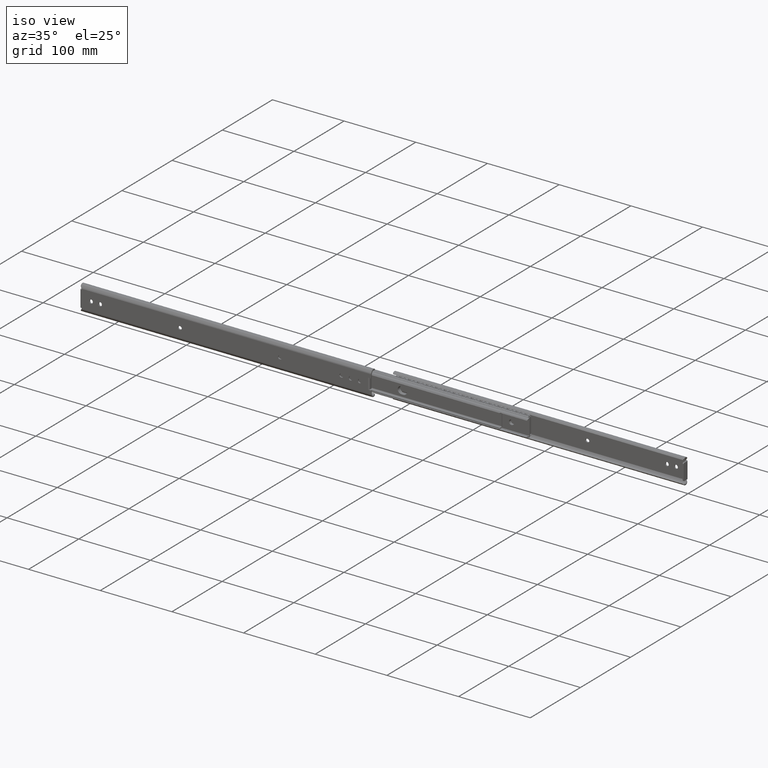
[diagram: clean part render]
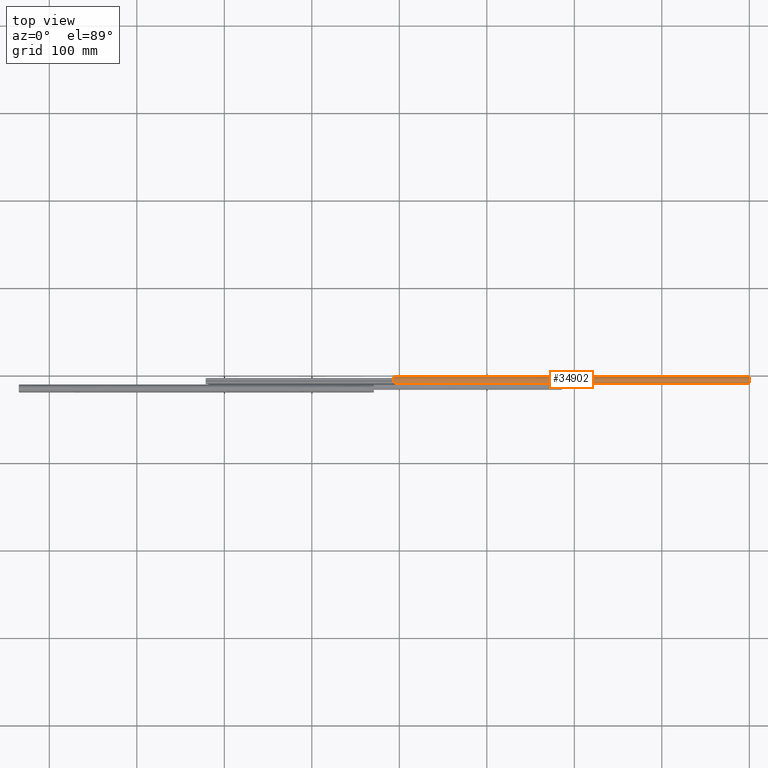
[diagram: tour spotlight — one face highlighted and labeled with its STEP entity id]
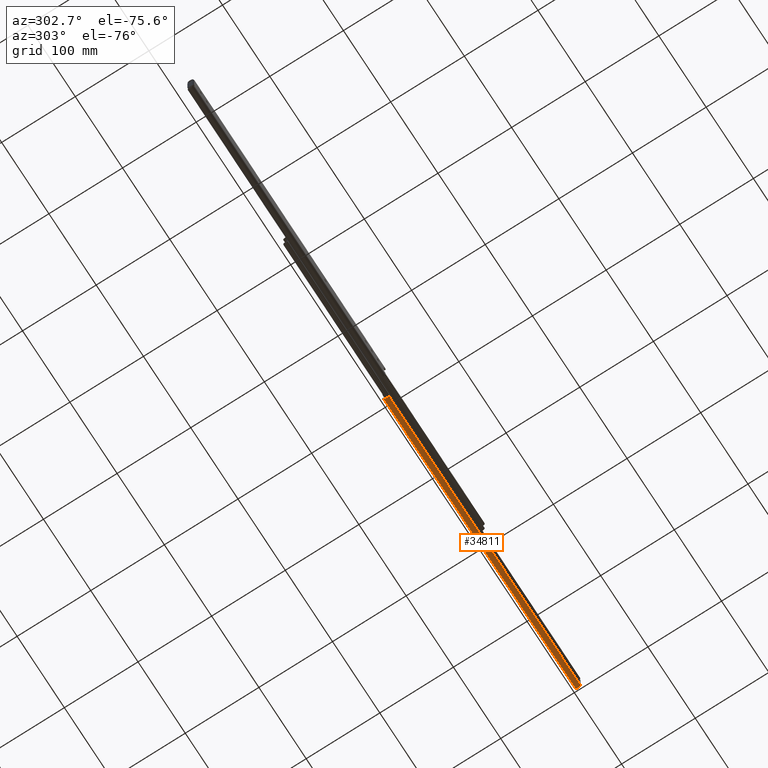
[diagram: tour spotlight — one face highlighted and labeled with its STEP entity id]
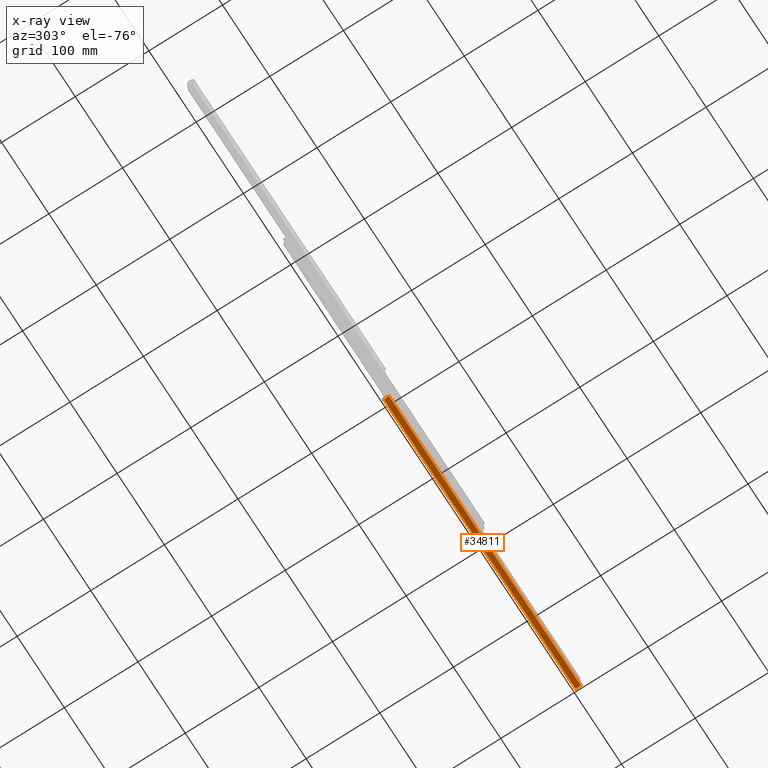
[diagram: x-ray of the same camera — body ghosted, this tour face saturated]
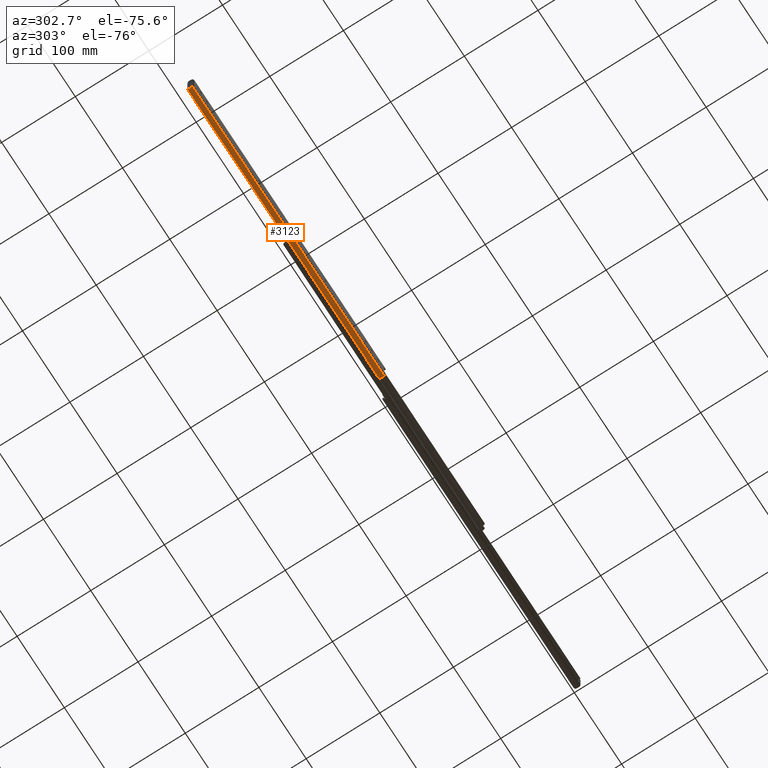
[diagram: tour spotlight — one face highlighted and labeled with its STEP entity id]
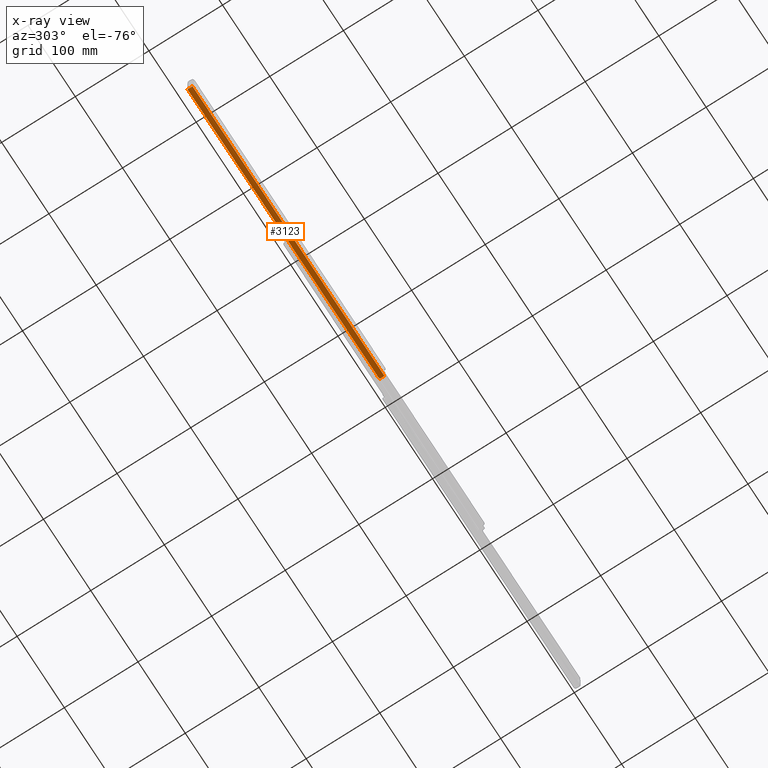
[diagram: x-ray of the same camera — body ghosted, this tour face saturated]
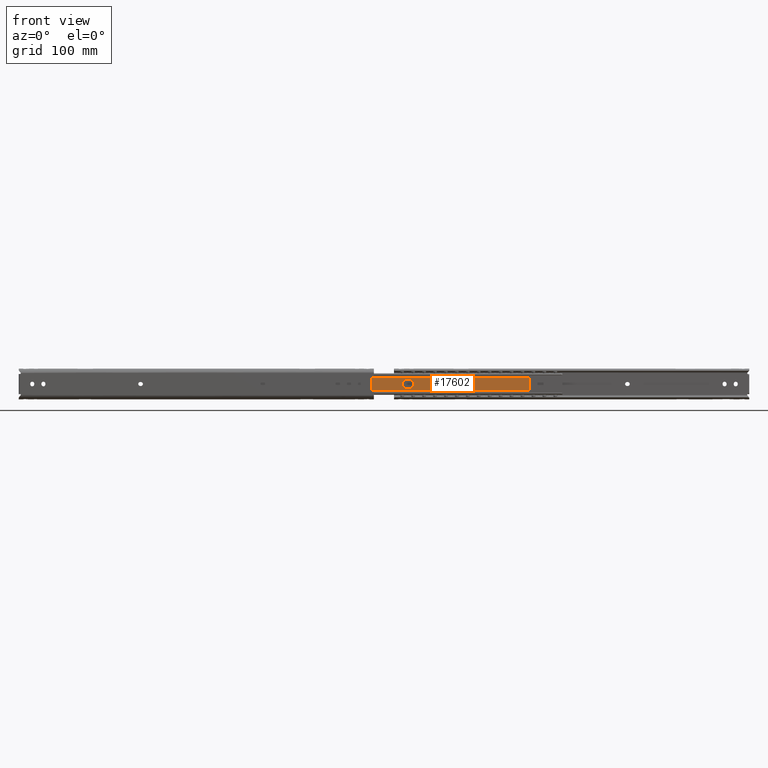
[diagram: tour spotlight — one face highlighted and labeled with its STEP entity id]
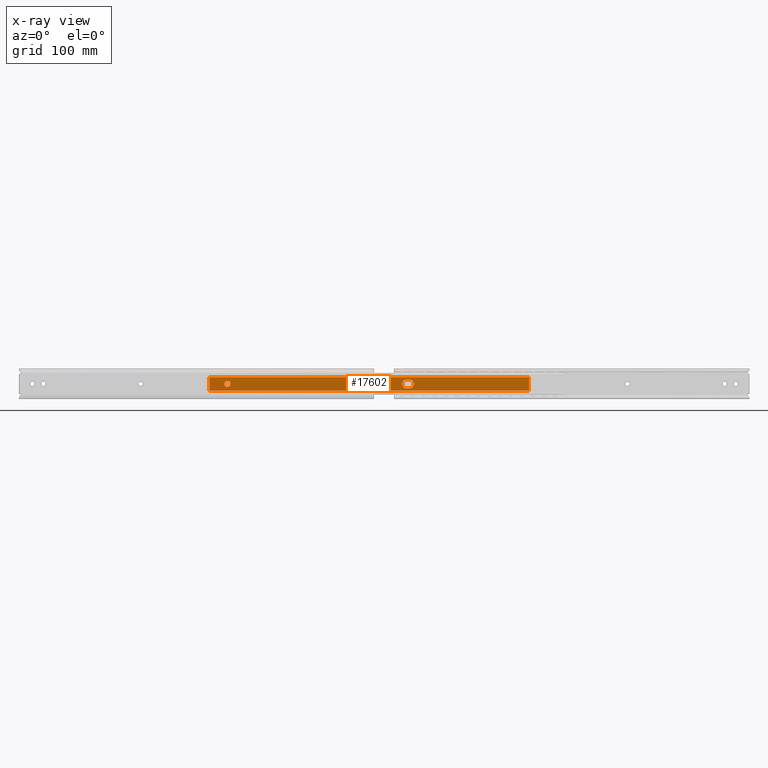
[diagram: x-ray of the same camera — body ghosted, this tour face saturated]
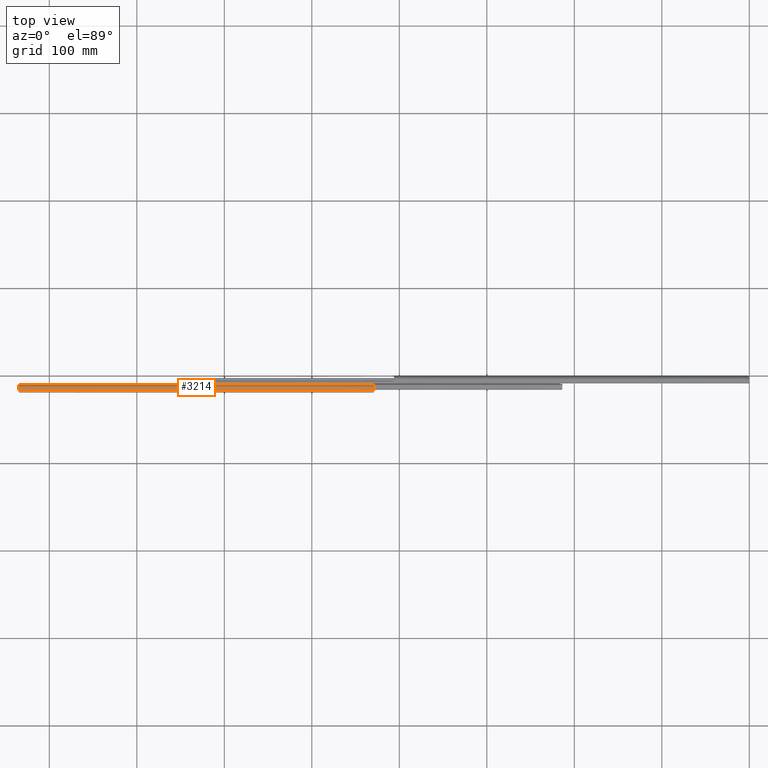
[diagram: tour spotlight — one face highlighted and labeled with its STEP entity id]
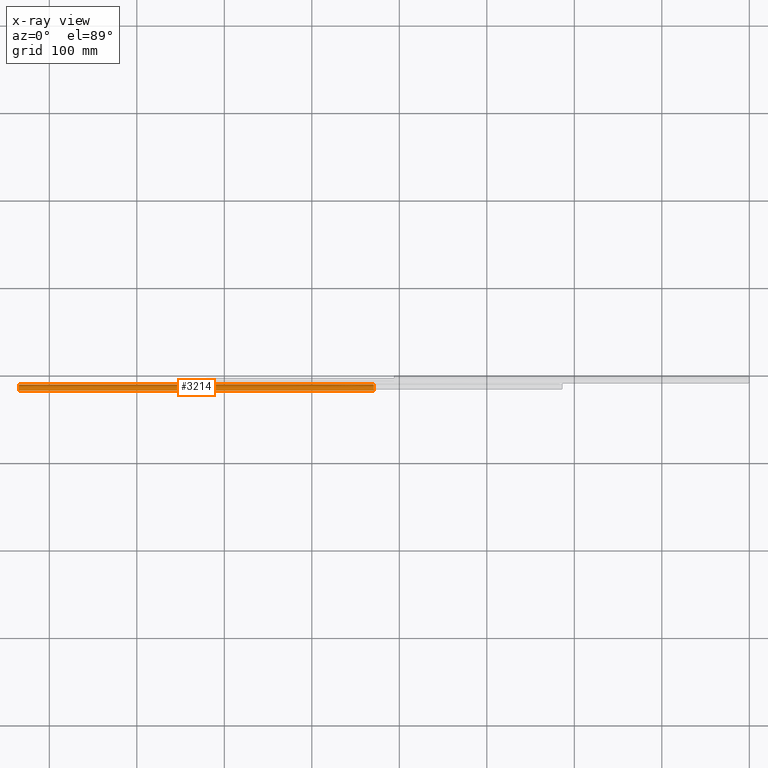
[diagram: x-ray of the same camera — body ghosted, this tour face saturated]
A machine part: a face-by-face anatomy tour. The part has 888 B-rep faces; the first image is the clean iso view, then the 5 largest visible faces are spotlighted one at a time (largest first), each with its STEP entity span.

Face 1 — top view, entity #34902. In plain terms, the highlighted face is a freeform B-spline surface patch.
Definition (entity closure, byte-faithful):
#33149=CARTESIAN_POINT('',(-404.399999999999980,-8.699999999998910,15.138562999999900));
#33150=VERTEX_POINT('',#33149);
#33156=CARTESIAN_POINT('',(-406.0,-7.797361481444250,16.501614328667451));
#33157=VERTEX_POINT('',#33156);
#33158=CARTESIAN_POINT('',(-406.0,-7.797361481444250,16.501614328667451));
#33159=CARTESIAN_POINT('',(-406.000000000000110,-7.873805621332489,16.426128224288419));
#33160=CARTESIAN_POINT('',(-405.990997167615600,-7.946032538755109,16.348703276691062));
#33161=CARTESIAN_POINT('',(-405.963169050456710,-8.048366695128726,16.230104814365291));
#33162=CARTESIAN_POINT('',(-405.951493122542620,-8.081474872352656,16.190162409486980));
#33163=CARTESIAN_POINT('',(-405.923026400910710,-8.145713987625044,16.109547295089460));
#33164=CARTESIAN_POINT('',(-405.906181411616390,-8.176853519449889,16.068838561062719));
#33165=CARTESIAN_POINT('',(-405.848901241949310,-8.265269615821515,15.948717804249981));
#33166=CARTESIAN_POINT('',(-405.801481476455420,-8.318358805070801,15.870322937540230));
#33167=CARTESIAN_POINT('',(-405.715997520898380,-8.390332623060527,15.756336050086629));
#33168=CARTESIAN_POINT('',(-405.684895276481710,-8.413163642828843,15.718734330920270));
#33169=CARTESIAN_POINT('',(-405.618681467106230,-8.455725429243719,15.646143124147461));
#33170=CARTESIAN_POINT('',(-405.583679256986610,-8.475428088658347,15.611224698661720));
#33171=CARTESIAN_POINT('',(-405.473109611603210,-8.530331846427027,15.510742340942160));
#33172=CARTESIAN_POINT('',(-405.391907230752110,-8.561401120966730,15.449330065202471));
#33173=CARTESIAN_POINT('',(-405.214682063339130,-8.614078442506949,15.339821609604501));
#33174=CARTESIAN_POINT('',(-405.121416271148410,-8.634910334960923,15.293401310451520));
#33175=CARTESIAN_POINT('',(-404.974798504473480,-8.659656058538076,15.236454519679951));
#33176=CARTESIAN_POINT('',(-404.924797603850380,-8.666806422977562,15.219599340663439));
#33177=CARTESIAN_POINT('',(-404.822479874299120,-8.679044047598078,15.190340587792550));
#33178=CARTESIAN_POINT('',(-404.770336387127490,-8.684098712959324,15.178014943016040));
#33179=CARTESIAN_POINT('',(-404.613514909317590,-8.696079285490850,15.148547015819510));
#33180=CARTESIAN_POINT('',(-404.507505410241210,-8.700000152593525,15.138563060669380));
#33181=CARTESIAN_POINT('',(-404.399999999999980,-8.699999999998910,15.138562999999900));
#33182=B_SPLINE_CURVE_WITH_KNOTS('',3,(#33158,#33159,#33160,#33161,#33162,#33163,#33164,#33165,#33166,#33167,#33168,#33169,#33170,#33171,#33172,#33173,#33174,#33175,#33176,#33177,#33178,#33179,#33180,#33181),.UNSPECIFIED.,.F.,.U.,(4,2,2,2,2,2,2,2,2,2,2,4),(0.0,0.124999999999984,0.187499999999977,0.249999999999970,0.374999999999955,0.437499999999948,0.499999999999941,0.624999999999926,0.749999999999911,0.812499999999933,0.874999999999956,1.0),.UNSPECIFIED.);
#33183=EDGE_CURVE('',#33157,#33150,#33182,.T.);
#33334=CARTESIAN_POINT('',(0.0,-7.797361481444240,16.501614328667451));
#33335=VERTEX_POINT('',#33334);
#33341=CARTESIAN_POINT('',(-1.600000000000045,-8.699999999998910,15.138562999999900));
#33342=VERTEX_POINT('',#33341);
#33343=CARTESIAN_POINT('',(-1.600000000000045,-8.699999999998910,15.138562999999900));
#33344=CARTESIAN_POINT('',(-1.492489346427202,-8.699999999998910,15.138562999999900));
#33345=CARTESIAN_POINT('',(-1.386802597449629,-8.696078365943000,15.148546628420229));
#33346=CARTESIAN_POINT('',(-1.230898281170819,-8.684205456893288,15.177753697956600));
#33347=CARTESIAN_POINT('',(-1.179371178589257,-8.679235344828081,15.189876962640520));
#33348=CARTESIAN_POINT('',(-1.077220936446557,-8.667076825851693,15.218958860897670));
#33349=CARTESIAN_POINT('',(-1.026542471616715,-8.659862182526561,15.235973860709249));
#33350=CARTESIAN_POINT('',(-0.879285968175244,-8.635068572375571,15.293049567587570));
#33351=CARTESIAN_POINT('',(-0.786269993977588,-8.614272223775643,15.339377883525700));
#33352=CARTESIAN_POINT('',(-0.654471023954576,-8.575229628311657,15.420602472360271));
#33353=CARTESIAN_POINT('',(-0.611609034011625,-8.560804386767396,15.449821699886840));
#33354=CARTESIAN_POINT('',(-0.529773989184400,-8.529370686740327,15.511326141313500));
#33355=CARTESIAN_POINT('',(-0.490915097730471,-8.512430817789452,15.543485633998500));
#33356=CARTESIAN_POINT('',(-0.380335841868856,-8.457633071134046,15.643828389949210));
#33357=CARTESIAN_POINT('',(-0.314560355011735,-8.415838695406357,15.715845930875050));
#33358=CARTESIAN_POINT('',(-0.228090507059038,-8.343364294245539,15.830767068307670));
#33359=CARTESIAN_POINT('',(-0.201657300693360,-8.317829643623202,15.869798196113919));
#33360=CARTESIAN_POINT('',(-0.153883464229413,-8.264384940957552,15.948310848709831));
#33361=CARTESIAN_POINT('',(-0.111017979923147,-8.208411759235545,16.027518397096241));
#33362=CARTESIAN_POINT('',(-0.077677865162380,-8.147098633525307,16.107761194242439));
#33363=CARTESIAN_POINT('',(-0.049067677373443,-8.082936149693545,16.188374994257959));
#33364=CARTESIAN_POINT('',(-0.037150048001637,-8.049386105507637,16.228898804542990));
#33365=CARTESIAN_POINT('',(-0.009006493843022,-7.946348845887630,16.348385027066819));
#33366=CARTESIAN_POINT('',(-4.502446E-014,-7.873837216252379,16.426097025331622));
#33367=CARTESIAN_POINT('',(0.0,-7.797361481444240,16.501614328667451));
#33368=B_SPLINE_CURVE_WITH_KNOTS('',3,(#33343,#33344,#33345,#33346,#33347,#33348,#33349,#33350,#33351,#33352,#33353,#33354,#33355,#33356,#33357,#33358,#33359,#33360,#33361,#33362,#33363,#33364,#33365,#33366,#33367),.UNSPECIFIED.,.F.,.U.,(4,2,2,2,2,2,2,2,2,1,2,2,4),(0.0,0.124999999999999,0.187499999999998,0.249999999999998,0.374999999999997,0.437499999999997,0.499999999999998,0.624999999999999,0.687499999999999,0.749999999999999,0.812499999999999,0.875000000000000,1.0),.UNSPECIFIED.);
#33369=EDGE_CURVE('',#33342,#33335,#33368,.T.);
#34077=CARTESIAN_POINT('',(-0.002126651732381,-1.820942246822505,16.065402533108600));
#34078=VERTEX_POINT('',#34077);
#34079=CARTESIAN_POINT('',(-2.220446E-016,-1.884824599747705,16.147869559068699));
#34080=VERTEX_POINT('',#34079);
#34081=CARTESIAN_POINT('',(-0.002126651732381,-1.820942246822505,16.065402533108600));
#34082=CARTESIAN_POINT('',(-0.000688835869264,-1.841945009787605,16.093261805789972));
#34083=CARTESIAN_POINT('',(4.477873E-016,-1.863240068473669,16.120747187900779));
#34084=CARTESIAN_POINT('',(-2.220446E-016,-1.884824599747705,16.147869559068699));
#34085=QUASI_UNIFORM_CURVE('',3,(#34081,#34082,#34083,#34084),.UNSPECIFIED.,.F.,.U.);
#34086=EDGE_CURVE('',#34078,#34080,#34085,.T.);
#34709=CARTESIAN_POINT('',(-1.600000000000045,-8.699999999998910,15.138562999999900));
#34710=CARTESIAN_POINT('',(-404.399999999999980,-8.699999999998910,15.138562999999900));
#34711=QUASI_UNIFORM_CURVE('',1,(#34709,#34710),.UNSPECIFIED.,.F.,.U.);
#34712=EDGE_CURVE('',#33342,#33150,#34711,.T.);
#34833=CARTESIAN_POINT('',(-406.0,-1.820942246822505,16.065402533108600));
#34834=VERTEX_POINT('',#34833);
#34835=CARTESIAN_POINT('',(-0.002126651732381,-1.820942246822505,16.065402533108600));
#34836=CARTESIAN_POINT('',(-406.0,-1.820942246822505,16.065402533108600));
#34837=QUASI_UNIFORM_CURVE('',1,(#34835,#34836),.UNSPECIFIED.,.F.,.U.);
#34838=EDGE_CURVE('',#34078,#34834,#34837,.T.);
#34851=CARTESIAN_POINT('',(10.150000000000009,-1.739288401406944,15.953068592774390));
#34852=CARTESIAN_POINT('',(-416.403750000000000,-1.739288401406944,15.953068592774390));
#34853=CARTESIAN_POINT('',(10.149999999999979,-6.222516069506702,22.352575431597401));
#34854=CARTESIAN_POINT('',(-416.403749999999950,-6.222516069506702,22.352575431597401));
#34855=CARTESIAN_POINT('',(10.150000000000009,-8.764650751754601,14.964032316647740));
#34856=CARTESIAN_POINT('',(-416.403750000000000,-8.764650751754601,14.964032316647740));
#34864=(BOUNDED_SURFACE()B_SPLINE_SURFACE(1,2,((#34851,#34853,#34855),(#34852,#34854,#34856)),.UNSPECIFIED.,.F.,.F.,.U.)B_SPLINE_SURFACE_WITH_KNOTS((2,2),(3,3),(0.0,426.553749999999980),(0.0,9.758852551128408),.UNSPECIFIED.)GEOMETRIC_REPRESENTATION_ITEM()RATIONAL_B_SPLINE_SURFACE(((1.0,0.453990499739547,1.0),(1.0,0.453990499739547,1.0)))REPRESENTATION_ITEM('')SURFACE());
#34865=ORIENTED_EDGE('',*,*,#34712,.F.);
#34866=ORIENTED_EDGE('',*,*,#33369,.T.);
#34867=CARTESIAN_POINT('',(-2.220446E-016,-1.884824599747705,16.147869559068699));
#34868=CARTESIAN_POINT('',(0.0,-2.990223276975565,17.536875084912072));
#34869=CARTESIAN_POINT('',(0.0,-4.762228550386070,17.642893467496869));
#34870=CARTESIAN_POINT('',(0.0,-6.534233823796575,17.748911850081665));
#34871=CARTESIAN_POINT('',(0.0,-7.797361481444240,16.501614328667451));
#34879=(BOUNDED_CURVE()B_SPLINE_CURVE(2,(#34867,#34868,#34869,#34870,#34871),.UNSPECIFIED.,.F.,.U.)B_SPLINE_CURVE_WITH_KNOTS((3,2,3),(0.0,0.500000000000000,1.0),.UNSPECIFIED.)CURVE()GEOMETRIC_REPRESENTATION_ITEM()RATIONAL_B_SPLINE_CURVE((1.0,0.913323076196501,1.0,0.913323076196501,1.0))REPRESENTATION_ITEM(''));
#34880=EDGE_CURVE('',#34080,#33335,#34879,.T.);
#34881=ORIENTED_EDGE('',*,*,#34880,.F.);
#34882=ORIENTED_EDGE('',*,*,#34086,.F.);
#34883=ORIENTED_EDGE('',*,*,#34838,.T.);
#34884=CARTESIAN_POINT('',(-406.0,-1.820942246822465,16.065402533108632));
#34885=CARTESIAN_POINT('',(-406.000000000000060,-2.908446470661431,17.507930678782426));
#34886=CARTESIAN_POINT('',(-406.0,-4.710184207452808,17.639437392491349));
#34887=CARTESIAN_POINT('',(-406.000000000000060,-6.511921944244188,17.770944106200272));
#34888=CARTESIAN_POINT('',(-406.0,-7.797361481444307,16.501614328667511));
#34896=(BOUNDED_CURVE()B_SPLINE_CURVE(2,(#34884,#34885,#34886,#34887,#34888),.UNSPECIFIED.,.F.,.U.)B_SPLINE_CURVE_WITH_KNOTS((3,2,3),(0.0,0.500000000000000,1.0),.UNSPECIFIED.)CURVE()GEOMETRIC_REPRESENTATION_ITEM()RATIONAL_B_SPLINE_CURVE((1.0,0.910635851455408,1.0,0.910635851455408,1.0))REPRESENTATION_ITEM(''));
#34897=EDGE_CURVE('',#34834,#33157,#34896,.T.);
#34898=ORIENTED_EDGE('',*,*,#34897,.T.);
#34899=ORIENTED_EDGE('',*,*,#33183,.T.);
#34900=EDGE_LOOP('',(#34865,#34866,#34881,#34882,#34883,#34898,#34899));
#34901=FACE_OUTER_BOUND('',#34900,.T.);
#34902=ADVANCED_FACE('',(#34901),#34864,.T.);

Face 2 — auxiliary view, entity #34811. An x-ray twin of the same camera follows (body ghosted, this face saturated) — the face is partly hidden behind the body. In plain terms, the highlighted face is a freeform B-spline surface patch.
Definition (entity closure, byte-faithful):
#33207=CARTESIAN_POINT('',(-404.399999999999980,-8.699999993715212,-15.138563460618100));
#33208=VERTEX_POINT('',#33207);
#33209=CARTESIAN_POINT('',(-406.0,-7.797361481444230,-16.501614328667550));
#33210=VERTEX_POINT('',#33209);
#33211=CARTESIAN_POINT('',(-404.399999999999980,-8.699999993715212,-15.138563460618100));
#33212=CARTESIAN_POINT('',(-404.507510650755310,-8.700000152611262,-15.138563060624760));
#33213=CARTESIAN_POINT('',(-404.613197468237500,-8.696078362616650,-15.148546636779150));
#33214=CARTESIAN_POINT('',(-404.769101779199670,-8.684205451457681,-15.177753711239960));
#33215=CARTESIAN_POINT('',(-404.820628880005420,-8.679235338719806,-15.189876977430719));
#33216=CARTESIAN_POINT('',(-404.922779118536990,-8.667076818441155,-15.218958878443051));
#33217=CARTESIAN_POINT('',(-404.973457581063310,-8.659862174548621,-15.235973879353290));
#33218=CARTESIAN_POINT('',(-405.120714077698610,-8.635068562868073,-15.293049588916990));
#33219=CARTESIAN_POINT('',(-405.213730047605680,-8.614272213402739,-15.339377905998100));
#33220=CARTESIAN_POINT('',(-405.345529011461510,-8.575229616847711,-15.420602495763710));
#33221=CARTESIAN_POINT('',(-405.388390999425720,-8.560804374952879,-15.449821723507100));
#33222=CARTESIAN_POINT('',(-405.470226039969480,-8.529370674512832,-15.511326164734820));
#33223=CARTESIAN_POINT('',(-405.509084929386180,-8.512430805408819,-15.543485657189100));
#33224=CARTESIAN_POINT('',(-405.619664179418980,-8.457633058470417,-15.643828412098509));
#33225=CARTESIAN_POINT('',(-405.685439662761330,-8.415838682784601,-15.715845951868859));
#33226=CARTESIAN_POINT('',(-405.771909505984180,-8.343364282175868,-15.830767086956429));
#33227=CARTESIAN_POINT('',(-405.798342710820920,-8.317829631880983,-15.869798213791910));
#33228=CARTESIAN_POINT('',(-405.846116544575980,-8.264384929967859,-15.948310864426020));
#33229=CARTESIAN_POINT('',(-405.888982026440710,-8.208411749154946,-16.027518410732618));
#33230=CARTESIAN_POINT('',(-405.922322139277920,-8.147098624701346,-16.107761205599051));
#33231=CARTESIAN_POINT('',(-405.950932325407280,-8.082936142322950,-16.188375003248229));
#33232=CARTESIAN_POINT('',(-405.962849954100190,-8.049386098923984,-16.228898812355819));
#33233=CARTESIAN_POINT('',(-405.990993506666310,-7.946348841799290,-16.348385031451500));
#33234=CARTESIAN_POINT('',(-406.000000000000110,-7.873837214074185,-16.426097027482570));
#33235=CARTESIAN_POINT('',(-406.0,-7.797361481444230,-16.501614328667550));
#33236=B_SPLINE_CURVE_WITH_KNOTS('',3,(#33211,#33212,#33213,#33214,#33215,#33216,#33217,#33218,#33219,#33220,#33221,#33222,#33223,#33224,#33225,#33226,#33227,#33228,#33229,#33230,#33231,#33232,#33233,#33234,#33235),.UNSPECIFIED.,.F.,.U.,(4,2,2,2,2,2,2,2,2,1,2,2,4),(0.0,0.125000000000060,0.187500000000059,0.250000000000057,0.375000000000113,0.437500000000114,0.500000000000115,0.625000000000115,0.687500000000098,0.750000000000081,0.812500000000064,0.875000000000047,1.0),.UNSPECIFIED.);
#33237=EDGE_CURVE('',#33208,#33210,#33236,.T.);
#33393=CARTESIAN_POINT('',(0.0,-7.797361481444230,-16.501614328667550));
#33394=VERTEX_POINT('',#33393);
#33395=CARTESIAN_POINT('',(-1.600000000000045,-8.699999993715212,-15.138563460618100));
#33396=VERTEX_POINT('',#33395);
#33397=CARTESIAN_POINT('',(0.0,-7.797361481444230,-16.501614328667550));
#33398=CARTESIAN_POINT('',(-3.026731E-016,-7.873805619575639,-16.426128226023330));
#33399=CARTESIAN_POINT('',(-0.009002831974016,-7.946032535434714,-16.348703280250071));
#33400=CARTESIAN_POINT('',(-0.036830947829830,-8.048366689733353,-16.230104820762708));
#33401=CARTESIAN_POINT('',(-0.048506875194038,-8.081474866310860,-16.190162416847521));
#33402=CARTESIAN_POINT('',(-0.076973595464904,-8.145713980379735,-16.109547304403211));
#33403=CARTESIAN_POINT('',(-0.093818583984690,-8.176853511728769,-16.068838571263662));
#33404=CARTESIAN_POINT('',(-0.151098751051779,-8.265269606879965,-15.948717816975540));
#33405=CARTESIAN_POINT('',(-0.198518514397277,-8.318358795540844,-15.870322951847120));
#33406=CARTESIAN_POINT('',(-0.284002465994000,-8.390332612938586,-15.756336066510009));
#33407=CARTESIAN_POINT('',(-0.315104708912325,-8.413163632538156,-15.718734348047249));
#33408=CARTESIAN_POINT('',(-0.381318515543822,-8.455725418993142,-15.646143142054591));
#33409=CARTESIAN_POINT('',(-0.416320724215166,-8.475428078467813,-15.611224716891050));
#33410=CARTESIAN_POINT('',(-0.526890365007060,-8.530331836524994,-15.510742359906240));
#33411=CARTESIAN_POINT('',(-0.608092741817427,-8.561401111208173,-15.449330084751670));
#33412=CARTESIAN_POINT('',(-0.785317902997159,-8.614078434106073,-15.339821627806121));
#33413=CARTESIAN_POINT('',(-0.878583691911314,-8.634910327299462,-15.293401327635930));
#33414=CARTESIAN_POINT('',(-1.025201453344689,-8.659656052132084,-15.236454534645279));
#33415=CARTESIAN_POINT('',(-1.075202352165787,-8.666806417014982,-15.219599354772550));
#33416=CARTESIAN_POINT('',(-1.177520077978143,-8.679044042592075,-15.190340599908030));
#33417=CARTESIAN_POINT('',(-1.229663563854579,-8.684098708529566,-15.178014953839270));
#33418=CARTESIAN_POINT('',(-1.386485037344799,-8.696079282785918,-15.148547022617461));
#33419=CARTESIAN_POINT('',(-1.492494592945813,-8.700000152611281,-15.138563060624801));
#33420=CARTESIAN_POINT('',(-1.600000000000045,-8.699999993715212,-15.138563460618100));
#33421=B_SPLINE_CURVE_WITH_KNOTS('',3,(#33397,#33398,#33399,#33400,#33401,#33402,#33403,#33404,#33405,#33406,#33407,#33408,#33409,#33410,#33411,#33412,#33413,#33414,#33415,#33416,#33417,#33418,#33419,#33420),.UNSPECIFIED.,.F.,.U.,(4,2,2,2,2,2,2,2,2,2,2,4),(0.0,0.124999999999998,0.187499999999998,0.249999999999998,0.374999999999997,0.437499999999997,0.499999999999997,0.624999999999998,0.749999999999999,0.812499999999999,0.874999999999999,1.0),.UNSPECIFIED.);
#33422=EDGE_CURVE('',#33394,#33396,#33421,.T.);
#34173=CARTESIAN_POINT('',(-2.220446E-016,-1.884824599747705,-16.147869559068699));
#34174=VERTEX_POINT('',#34173);
#34180=CARTESIAN_POINT('',(-0.002126657347102,-1.820942381806895,-16.065402712159699));
#34181=VERTEX_POINT('',#34180);
#34182=CARTESIAN_POINT('',(-2.168404E-016,-1.884824599747645,-16.147869559068699));
#34183=CARTESIAN_POINT('',(-2.168404E-016,-1.863161367784060,-16.120648295351881));
#34184=CARTESIAN_POINT('',(-0.000694151317568,-1.841867413671960,-16.093158874587441));
#34185=CARTESIAN_POINT('',(-0.002126657347057,-1.820942381806895,-16.065402712159699));
#34186=QUASI_UNIFORM_CURVE('',3,(#34182,#34183,#34184,#34185),.UNSPECIFIED.,.F.,.U.);
#34187=EDGE_CURVE('',#34174,#34181,#34186,.T.);
#34391=CARTESIAN_POINT('',(0.0,-7.797361481444248,-16.501614328667571));
#34392=CARTESIAN_POINT('',(0.0,-6.534233823796512,-17.748911850081683));
#34393=CARTESIAN_POINT('',(0.0,-4.762228550386033,-17.642893467496869));
#34394=CARTESIAN_POINT('',(0.0,-2.990223276975553,-17.536875084912054));
#34395=CARTESIAN_POINT('',(0.0,-1.884824599747676,-16.147869559068720));
#34403=(BOUNDED_CURVE()B_SPLINE_CURVE(2,(#34391,#34392,#34393,#34394,#34395),.UNSPECIFIED.,.F.,.U.)B_SPLINE_CURVE_WITH_KNOTS((3,2,3),(0.0,0.500000000000000,1.0),.UNSPECIFIED.)CURVE()GEOMETRIC_REPRESENTATION_ITEM()RATIONAL_B_SPLINE_CURVE((1.0,0.913323076196503,1.0,0.913323076196503,1.0))REPRESENTATION_ITEM(''));
#34404=EDGE_CURVE('',#33394,#34174,#34403,.T.);
#34572=CARTESIAN_POINT('',(-1.600000000000045,-8.699999993715212,-15.138563460618100));
#34573=CARTESIAN_POINT('',(-404.399999999999980,-8.699999993715212,-15.138563460618100));
#34574=QUASI_UNIFORM_CURVE('',1,(#34572,#34573),.UNSPECIFIED.,.F.,.U.);
#34575=EDGE_CURVE('',#33396,#33208,#34574,.T.);
#34590=CARTESIAN_POINT('',(-406.0,-1.820941999998920,-16.065403000000099));
#34591=VERTEX_POINT('',#34590);
#34592=CARTESIAN_POINT('',(-0.002126657347102,-1.820942381806895,-16.065402712159699));
#34593=CARTESIAN_POINT('',(-406.0,-1.820941999998920,-16.065403000000099));
#34594=QUASI_UNIFORM_CURVE('',1,(#34592,#34593),.UNSPECIFIED.,.F.,.U.);
#34595=EDGE_CURVE('',#34181,#34591,#34594,.T.);
#34774=CARTESIAN_POINT('',(10.150000000000009,-8.744436837402560,-15.021356496069540));
#34775=CARTESIAN_POINT('',(-416.403750000000120,-8.744436837402560,-15.021356496069540));
#34776=CARTESIAN_POINT('',(10.149999999999984,-6.089797118401962,-22.370227570354505));
#34777=CARTESIAN_POINT('',(-416.403750000000170,-6.089797118401962,-22.370227570354505));
#34778=CARTESIAN_POINT('',(10.150000000000009,-1.704793606813340,-15.903020885276840));
#34779=CARTESIAN_POINT('',(-416.403750000000120,-1.704793606813340,-15.903020885276840));
#34787=(BOUNDED_SURFACE()B_SPLINE_SURFACE(1,2,((#34774,#34776,#34778),(#34775,#34777,#34779)),.UNSPECIFIED.,.F.,.F.,.U.)B_SPLINE_SURFACE_WITH_KNOTS((2,2),(3,3),(0.0,426.553750000000210),(0.0,9.758852551128419),.UNSPECIFIED.)GEOMETRIC_REPRESENTATION_ITEM()RATIONAL_B_SPLINE_SURFACE(((1.0,0.453990499739547,1.0),(1.0,0.453990499739547,1.0)))REPRESENTATION_ITEM('')SURFACE());
#34788=ORIENTED_EDGE('',*,*,#34404,.F.);
#34789=ORIENTED_EDGE('',*,*,#33422,.T.);
#34790=ORIENTED_EDGE('',*,*,#34575,.T.);
#34791=ORIENTED_EDGE('',*,*,#33237,.T.);
#34792=CARTESIAN_POINT('',(-406.0,-7.797361481444248,-16.501614328667571));
#34793=CARTESIAN_POINT('',(-406.0,-6.511921992345206,-17.770944058702032));
#34794=CARTESIAN_POINT('',(-406.0,-4.710184319271428,-17.639437400652849));
#34795=CARTESIAN_POINT('',(-406.0,-2.908446646197651,-17.507930742603669));
#34796=CARTESIAN_POINT('',(-406.0,-1.820941999998920,-16.065403000000099));
#34804=(BOUNDED_CURVE()B_SPLINE_CURVE(2,(#34792,#34793,#34794,#34795,#34796),.UNSPECIFIED.,.F.,.U.)B_SPLINE_CURVE_WITH_KNOTS((3,2,3),(0.0,0.500000000000000,1.0),.UNSPECIFIED.)CURVE()GEOMETRIC_REPRESENTATION_ITEM()RATIONAL_B_SPLINE_CURVE((1.0,0.910635857273618,1.0,0.910635857273618,1.0))REPRESENTATION_ITEM(''));
#34805=EDGE_CURVE('',#33210,#34591,#34804,.T.);
#34806=ORIENTED_EDGE('',*,*,#34805,.T.);
#34807=ORIENTED_EDGE('',*,*,#34595,.F.);
#34808=ORIENTED_EDGE('',*,*,#34187,.F.);
#34809=EDGE_LOOP('',(#34788,#34789,#34790,#34791,#34806,#34807,#34808));
#34810=FACE_OUTER_BOUND('',#34809,.T.);
#34811=ADVANCED_FACE('',(#34810),#34787,.T.);

Face 3 — auxiliary view, entity #3123. An x-ray twin of the same camera follows (body ghosted, this face saturated) — the face is partly hidden behind the body. In plain terms, the highlighted face is a freeform B-spline surface patch.
Definition (entity closure, byte-faithful):
#1519=CARTESIAN_POINT('',(-430.600000000000020,-10.400000006284699,-15.138563460618100));
#1520=VERTEX_POINT('',#1519);
#1521=CARTESIAN_POINT('',(-429.0,-11.302638518555680,-16.501614328667550));
#1522=VERTEX_POINT('',#1521);
#1523=CARTESIAN_POINT('',(-430.600000000000020,-10.400000006284699,-15.138563460618100));
#1524=CARTESIAN_POINT('',(-430.492489349244810,-10.399999847388640,-15.138563060624749));
#1525=CARTESIAN_POINT('',(-430.386802531762610,-10.403921637383259,-15.148546636779139));
#1526=CARTESIAN_POINT('',(-430.230898220800210,-10.415794548542220,-15.177753711239950));
#1527=CARTESIAN_POINT('',(-430.179371119994410,-10.420764661280099,-15.189876977430711));
#1528=CARTESIAN_POINT('',(-430.077220881463120,-10.432923181558760,-15.218958878443040));
#1529=CARTESIAN_POINT('',(-430.026542418936910,-10.440137825451300,-15.235973879353301));
#1530=CARTESIAN_POINT('',(-429.879285922301220,-10.464931437131840,-15.293049588917009));
#1531=CARTESIAN_POINT('',(-429.786269952394090,-10.485727786597170,-15.339377905998100));
#1532=CARTESIAN_POINT('',(-429.654470988538380,-10.524770383152200,-15.420602495763699));
#1533=CARTESIAN_POINT('',(-429.611609000574220,-10.539195625047030,-15.449821723507091));
#1534=CARTESIAN_POINT('',(-429.529773960030580,-10.570629325487079,-15.511326164734809));
#1535=CARTESIAN_POINT('',(-429.490915070613820,-10.587569194591090,-15.543485657189100));
#1536=CARTESIAN_POINT('',(-429.380335820580910,-10.642366941529490,-15.643828412098520));
#1537=CARTESIAN_POINT('',(-429.314560337238670,-10.684161317215320,-15.715845951868889));
#1538=CARTESIAN_POINT('',(-429.228090494015420,-10.756635717824050,-15.830767086956451));
#1539=CARTESIAN_POINT('',(-429.201657289178910,-10.782170368118919,-15.869798213791910));
#1540=CARTESIAN_POINT('',(-429.153883455423910,-10.835615070032039,-15.948310864426009));
#1541=CARTESIAN_POINT('',(-429.111017973559290,-10.891588250844951,-16.027518410732611));
#1542=CARTESIAN_POINT('',(-429.077677860722080,-10.952901375298559,-16.107761205599040));
#1543=CARTESIAN_POINT('',(-429.049067674592720,-11.017063857676950,-16.188375003248218));
#1544=CARTESIAN_POINT('',(-429.037150045899690,-11.050613901075931,-16.228898812355830));
#1545=CARTESIAN_POINT('',(-429.009006493333690,-11.153651158200621,-16.348385031451500));
#1546=CARTESIAN_POINT('',(-429.000000000000110,-11.226162785925730,-16.426097027482570));
#1547=CARTESIAN_POINT('',(-429.0,-11.302638518555680,-16.501614328667550));
#1548=B_SPLINE_CURVE_WITH_KNOTS('',3,(#1523,#1524,#1525,#1526,#1527,#1528,#1529,#1530,#1531,#1532,#1533,#1534,#1535,#1536,#1537,#1538,#1539,#1540,#1541,#1542,#1543,#1544,#1545,#1546,#1547),.UNSPECIFIED.,.F.,.U.,(4,2,2,2,2,2,2,2,2,1,2,2,4),(0.0,0.125000000000126,0.187500000000156,0.250000000000187,0.375000000000188,0.437500000000160,0.500000000000133,0.625000000000078,0.687500000000068,0.750000000000057,0.812500000000046,0.875000000000036,1.0),.UNSPECIFIED.);
#1549=EDGE_CURVE('',#1520,#1522,#1548,.T.);
#1705=CARTESIAN_POINT('',(-835.0,-11.302638518555680,-16.501614328667550));
#1706=VERTEX_POINT('',#1705);
#1707=CARTESIAN_POINT('',(-833.399999999999980,-10.400000006284699,-15.138563460618100));
#1708=VERTEX_POINT('',#1707);
#1709=CARTESIAN_POINT('',(-835.0,-11.302638518555680,-16.501614328667550));
#1710=CARTESIAN_POINT('',(-835.000000000000110,-11.226194380424280,-16.426128226023341));
#1711=CARTESIAN_POINT('',(-834.990997168026070,-11.153967464565200,-16.348703280250088));
#1712=CARTESIAN_POINT('',(-834.963169052169750,-11.051633310266570,-16.230104820762740));
#1713=CARTESIAN_POINT('',(-834.951493124806010,-11.018525133689071,-16.190162416847532));
#1714=CARTESIAN_POINT('',(-834.923026404535220,-10.954286019620200,-16.109547304403240));
#1715=CARTESIAN_POINT('',(-834.906181416015220,-10.923146488271120,-16.068838571263630));
#1716=CARTESIAN_POINT('',(-834.848901248948100,-10.834730393119941,-15.948717816975510));
#1717=CARTESIAN_POINT('',(-834.801481485602380,-10.781641204459060,-15.870322951847109));
#1718=CARTESIAN_POINT('',(-834.715997534005850,-10.709667387061330,-15.756336066510020));
#1719=CARTESIAN_POINT('',(-834.684895291087510,-10.686836367461771,-15.718734348047279));
#1720=CARTESIAN_POINT('',(-834.618681484456370,-10.644274581006790,-15.646143142054630));
#1721=CARTESIAN_POINT('',(-834.583679275785020,-10.624571921532100,-15.611224716891050));
#1722=CARTESIAN_POINT('',(-834.473109634993190,-10.569668163474921,-15.510742359906230));
#1723=CARTESIAN_POINT('',(-834.391907258182530,-10.538598888791750,-15.449330084751690));
#1724=CARTESIAN_POINT('',(-834.214682097002990,-10.485921565893850,-15.339821627806140));
#1725=CARTESIAN_POINT('',(-834.121416308088560,-10.465089672700451,-15.293401327635941));
#1726=CARTESIAN_POINT('',(-833.974798546655280,-10.440343947867831,-15.236454534645290));
#1727=CARTESIAN_POINT('',(-833.924797647834450,-10.433193582984940,-15.219599354772580));
#1728=CARTESIAN_POINT('',(-833.822479922021900,-10.420955957407839,-15.190340599908060));
#1729=CARTESIAN_POINT('',(-833.770336436145730,-10.415901291470350,-15.178014953839289));
#1730=CARTESIAN_POINT('',(-833.613514962655130,-10.403920717214000,-15.148547022617469));
#1731=CARTESIAN_POINT('',(-833.507505407054170,-10.399999847388621,-15.138563060624801));
#1732=CARTESIAN_POINT('',(-833.399999999999980,-10.400000006284699,-15.138563460618100));
#1733=B_SPLINE_CURVE_WITH_KNOTS('',3,(#1709,#1710,#1711,#1712,#1713,#1714,#1715,#1716,#1717,#1718,#1719,#1720,#1721,#1722,#1723,#1724,#1725,#1726,#1727,#1728,#1729,#1730,#1731,#1732),.UNSPECIFIED.,.F.,.U.,(4,2,2,2,2,2,2,2,2,2,2,4),(0.0,0.124999999999917,0.187499999999888,0.249999999999859,0.374999999999802,0.437499999999773,0.499999999999744,0.624999999999776,0.749999999999808,0.812499999999824,0.874999999999840,1.0),.UNSPECIFIED.);
#1734=EDGE_CURVE('',#1706,#1708,#1733,.T.);
#2485=CARTESIAN_POINT('',(-835.0,-17.215175400252200,-16.147869559068699));
#2486=VERTEX_POINT('',#2485);
#2492=CARTESIAN_POINT('',(-834.997873342652950,-17.279057618193001,-16.065402712159699));
#2493=VERTEX_POINT('',#2492);
#2494=CARTESIAN_POINT('',(-835.0,-17.215175400252249,-16.147869559068699));
#2495=CARTESIAN_POINT('',(-835.0,-17.236838632215839,-16.120648295351881));
#2496=CARTESIAN_POINT('',(-834.999305848682410,-17.258132586327928,-16.093158874587441));
#2497=CARTESIAN_POINT('',(-834.997873342652950,-17.279057618193001,-16.065402712159699));
#2498=QUASI_UNIFORM_CURVE('',3,(#2494,#2495,#2496,#2497),.UNSPECIFIED.,.F.,.U.);
#2499=EDGE_CURVE('',#2486,#2493,#2498,.T.);
#2703=CARTESIAN_POINT('',(-835.0,-11.302638518555661,-16.501614328667571));
#2704=CARTESIAN_POINT('',(-835.0,-12.565766176203395,-17.748911850081679));
#2705=CARTESIAN_POINT('',(-835.0,-14.337771449613880,-17.642893467496869));
#2706=CARTESIAN_POINT('',(-835.0,-16.109776723024357,-17.536875084912065));
#2707=CARTESIAN_POINT('',(-835.0,-17.215175400252232,-16.147869559068720));
#2715=(BOUNDED_CURVE()B_SPLINE_CURVE(2,(#2703,#2704,#2705,#2706,#2707),.UNSPECIFIED.,.F.,.U.)B_SPLINE_CURVE_WITH_KNOTS((3,2,3),(0.0,0.500000000000000,1.0),.UNSPECIFIED.)CURVE()GEOMETRIC_REPRESENTATION_ITEM()RATIONAL_B_SPLINE_CURVE((1.0,0.913323076196503,1.0,0.913323076196503,1.0))REPRESENTATION_ITEM(''));
#2716=EDGE_CURVE('',#1706,#2486,#2715,.T.);
#2884=CARTESIAN_POINT('',(-833.399999999999980,-10.400000006284699,-15.138563460618100));
#2885=CARTESIAN_POINT('',(-430.600000000000020,-10.400000006284699,-15.138563460618100));
#2886=QUASI_UNIFORM_CURVE('',1,(#2884,#2885),.UNSPECIFIED.,.F.,.U.);
#2887=EDGE_CURVE('',#1708,#1520,#2886,.T.);
#2902=CARTESIAN_POINT('',(-429.0,-17.279058000001001,-16.065403000000099));
#2903=VERTEX_POINT('',#2902);
#2904=CARTESIAN_POINT('',(-834.997873342652950,-17.279057618193001,-16.065402712159699));
#2905=CARTESIAN_POINT('',(-429.0,-17.279058000001001,-16.065403000000099));
#2906=QUASI_UNIFORM_CURVE('',1,(#2904,#2905),.UNSPECIFIED.,.F.,.U.);
#2907=EDGE_CURVE('',#2493,#2903,#2906,.T.);
#3086=CARTESIAN_POINT('',(-845.150000000000090,-10.355563162597351,-15.021356496069540));
#3087=CARTESIAN_POINT('',(-418.596249999999880,-10.355563162597351,-15.021356496069540));
#3088=CARTESIAN_POINT('',(-845.150000000000090,-13.010202881597952,-22.370227570354505));
#3089=CARTESIAN_POINT('',(-418.596250000000050,-13.010202881597952,-22.370227570354505));
#3090=CARTESIAN_POINT('',(-845.150000000000090,-17.395206393186569,-15.903020885276840));
#3091=CARTESIAN_POINT('',(-418.596249999999880,-17.395206393186569,-15.903020885276840));
#3099=(BOUNDED_SURFACE()B_SPLINE_SURFACE(1,2,((#3086,#3088,#3090),(#3087,#3089,#3091)),.UNSPECIFIED.,.F.,.F.,.U.)B_SPLINE_SURFACE_WITH_KNOTS((2,2),(3,3),(0.0,426.553750000000210),(0.0,9.758852551128406),.UNSPECIFIED.)GEOMETRIC_REPRESENTATION_ITEM()RATIONAL_B_SPLINE_SURFACE(((1.0,0.453990499739547,1.0),(1.0,0.453990499739547,1.0)))REPRESENTATION_ITEM('')SURFACE());
#3100=ORIENTED_EDGE('',*,*,#2716,.F.);
#3101=ORIENTED_EDGE('',*,*,#1734,.T.);
#3102=ORIENTED_EDGE('',*,*,#2887,.T.);
#3103=ORIENTED_EDGE('',*,*,#1549,.T.);
#3104=CARTESIAN_POINT('',(-429.0,-11.302638518555661,-16.501614328667571));
#3105=CARTESIAN_POINT('',(-429.0,-12.588078007654708,-17.770944058702032));
#3106=CARTESIAN_POINT('',(-429.0,-14.389815680728489,-17.639437400652849));
#3107=CARTESIAN_POINT('',(-429.0,-16.191553353802259,-17.507930742603669));
#3108=CARTESIAN_POINT('',(-429.0,-17.279058000001001,-16.065403000000099));
#3116=(BOUNDED_CURVE()B_SPLINE_CURVE(2,(#3104,#3105,#3106,#3107,#3108),.UNSPECIFIED.,.F.,.U.)B_SPLINE_CURVE_WITH_KNOTS((3,2,3),(0.0,0.500000000000000,1.0),.UNSPECIFIED.)CURVE()GEOMETRIC_REPRESENTATION_ITEM()RATIONAL_B_SPLINE_CURVE((1.0,0.910635857273618,1.0,0.910635857273618,1.0))REPRESENTATION_ITEM(''));
#3117=EDGE_CURVE('',#1522,#2903,#3116,.T.);
#3118=ORIENTED_EDGE('',*,*,#3117,.T.);
#3119=ORIENTED_EDGE('',*,*,#2907,.F.);
#3120=ORIENTED_EDGE('',*,*,#2499,.F.);
#3121=EDGE_LOOP('',(#3100,#3101,#3102,#3103,#3118,#3119,#3120));
#3122=FACE_OUTER_BOUND('',#3121,.T.);
#3123=ADVANCED_FACE('',(#3122),#3099,.T.);

Face 4 — front view, entity #17602. An x-ray twin of the same camera follows (body ghosted, this face saturated) — the face is partly hidden behind the body. In plain terms, the highlighted face is a freeform B-spline surface patch.
Definition (entity closure, byte-faithful):
#15187=CARTESIAN_POINT('',(-592.924466657923400,-12.0,-0.413119822949315));
#15188=VERTEX_POINT('',#15187);
#15189=CARTESIAN_POINT('',(-596.400000000000090,-12.0,3.500000000000000));
#15190=VERTEX_POINT('',#15189);
#15191=CARTESIAN_POINT('',(-592.924466657923400,-11.999999999999998,-0.413119822949315));
#15192=CARTESIAN_POINT('',(-592.900000000000090,-11.999999999999998,-0.207284420449796));
#15193=CARTESIAN_POINT('',(-592.900000000000090,-12.0,-1.161367E-016));
#15194=CARTESIAN_POINT('',(-592.900000000000200,-12.0,3.500000000000000));
#15195=CARTESIAN_POINT('',(-596.400000000000090,-12.0,3.500000000000000));
#15203=(BOUNDED_CURVE()B_SPLINE_CURVE(2,(#15191,#15192,#15193,#15194,#15195),.UNSPECIFIED.,.F.,.U.)B_SPLINE_CURVE_WITH_KNOTS((3,2,3),(0.229562473355112,0.250000000000000,0.500000000000000),.UNSPECIFIED.)CURVE()GEOMETRIC_REPRESENTATION_ITEM()RATIONAL_B_SPLINE_CURVE((0.956026753873237,0.976055948145573,1.0,0.707106781186547,1.0))REPRESENTATION_ITEM(''));
#15204=EDGE_CURVE('',#15188,#15190,#15203,.T.);
#15206=CARTESIAN_POINT('',(-599.893471794337070,-12.0,0.213669890651929));
#15207=VERTEX_POINT('',#15206);
#15208=CARTESIAN_POINT('',(-596.400000000000090,-12.0,3.500000000000000));
#15209=CARTESIAN_POINT('',(-599.692471229864400,-11.999999999999998,3.500000000000000));
#15210=CARTESIAN_POINT('',(-599.893471794337070,-12.000000000000004,0.213669890651929));
#15218=(BOUNDED_CURVE()B_SPLINE_CURVE(2,(#15208,#15209,#15210),.UNSPECIFIED.,.F.,.U.)B_SPLINE_CURVE_WITH_KNOTS((3,3),(0.500000000000000,0.739332962016752),.UNSPECIFIED.)CURVE()GEOMETRIC_REPRESENTATION_ITEM()RATIONAL_B_SPLINE_CURVE((1.0,0.719603993547023,0.976072041190520))REPRESENTATION_ITEM(''));
#15219=EDGE_CURVE('',#15190,#15207,#15218,.T.);
#15286=CARTESIAN_POINT('',(-596.400000000000090,-12.0,-3.500000000000000));
#15287=VERTEX_POINT('',#15286);
#15288=CARTESIAN_POINT('',(-596.400000000000090,-12.0,-3.500000000000000));
#15289=CARTESIAN_POINT('',(-593.291389162143790,-12.0,-3.500000000000000));
#15290=CARTESIAN_POINT('',(-592.924466657923400,-12.000000000000002,-0.413119822949315));
#15298=(BOUNDED_CURVE()B_SPLINE_CURVE(2,(#15288,#15289,#15290),.UNSPECIFIED.,.F.,.U.)B_SPLINE_CURVE_WITH_KNOTS((3,3),(0.0,0.229562473355112),.UNSPECIFIED.)CURVE()GEOMETRIC_REPRESENTATION_ITEM()RATIONAL_B_SPLINE_CURVE((1.0,0.731050833040975,0.956026753873237))REPRESENTATION_ITEM(''));
#15299=EDGE_CURVE('',#15287,#15188,#15298,.T.);
#15333=CARTESIAN_POINT('',(-599.893471794337070,-12.000000000000002,0.213669890651929));
#15334=CARTESIAN_POINT('',(-599.899999999999980,-12.000000000000005,0.106934673831383));
#15335=CARTESIAN_POINT('',(-599.899999999999980,-12.0,-1.161367E-016));
#15336=CARTESIAN_POINT('',(-599.899999999999980,-12.0,-3.500000000000000));
#15337=CARTESIAN_POINT('',(-596.400000000000090,-12.0,-3.500000000000000));
#15345=(BOUNDED_CURVE()B_SPLINE_CURVE(2,(#15333,#15334,#15335,#15336,#15337),.UNSPECIFIED.,.F.,.U.)B_SPLINE_CURVE_WITH_KNOTS((3,2,3),(0.739332962016751,0.750000000000000,1.0),.UNSPECIFIED.)CURVE()GEOMETRIC_REPRESENTATION_ITEM()RATIONAL_B_SPLINE_CURVE((0.976072041190519,0.987502787639524,1.0,0.707106781186547,1.0))REPRESENTATION_ITEM(''));
#15346=EDGE_CURVE('',#15207,#15287,#15345,.T.);
#15916=CARTESIAN_POINT('',(-443.399999999999980,-12.0,4.999999999999800));
#15917=VERTEX_POINT('',#15916);
#15923=CARTESIAN_POINT('',(-446.399999999999980,-12.0,5.0));
#15924=VERTEX_POINT('',#15923);
#15925=CARTESIAN_POINT('',(-443.399999999999980,-12.0,4.999999999999800));
#15926=CARTESIAN_POINT('',(-446.399999999999980,-12.0,5.0));
#15927=QUASI_UNIFORM_CURVE('',1,(#15925,#15926),.UNSPECIFIED.,.F.,.U.);
#15928=EDGE_CURVE('',#15917,#15924,#15927,.T.);
#15964=CARTESIAN_POINT('',(-446.399999999999980,-12.0,-5.0));
#15965=VERTEX_POINT('',#15964);
#15966=CARTESIAN_POINT('',(-446.399999999999980,-12.0,5.0));
#15967=CARTESIAN_POINT('',(-451.400000000000030,-12.0,5.000000000000001));
#15968=CARTESIAN_POINT('',(-451.399999999999980,-12.0,-1.161367E-016));
#15969=CARTESIAN_POINT('',(-451.400000000000030,-12.0,-5.000000000000001));
#15970=CARTESIAN_POINT('',(-446.399999999999980,-12.0,-5.0));
#15978=(BOUNDED_CURVE()B_SPLINE_CURVE(2,(#15966,#15967,#15968,#15969,#15970),.UNSPECIFIED.,.F.,.U.)B_SPLINE_CURVE_WITH_KNOTS((3,2,3),(0.0,0.500000000000000,1.0),.UNSPECIFIED.)CURVE()GEOMETRIC_REPRESENTATION_ITEM()RATIONAL_B_SPLINE_CURVE((1.0,0.707106781186548,1.0,0.707106781186548,1.0))REPRESENTATION_ITEM(''));
#15979=EDGE_CURVE('',#15924,#15965,#15978,.T.);
#16012=CARTESIAN_POINT('',(-443.399999999999980,-12.0,-5.0));
#16013=VERTEX_POINT('',#16012);
#16014=CARTESIAN_POINT('',(-446.399999999999980,-12.0,-5.0));
#16015=CARTESIAN_POINT('',(-443.399999999999980,-12.0,-5.0));
#16016=QUASI_UNIFORM_CURVE('',1,(#16014,#16015),.UNSPECIFIED.,.F.,.U.);
#16017=EDGE_CURVE('',#15965,#16013,#16016,.T.);
#16053=CARTESIAN_POINT('',(-443.399999999999980,-12.0,-5.0));
#16054=CARTESIAN_POINT('',(-438.400000000000090,-12.0,-5.000000000000001));
#16055=CARTESIAN_POINT('',(-438.399999999999980,-12.0,-1.161367E-016));
#16056=CARTESIAN_POINT('',(-438.400000000000090,-12.0,5.000000000000001));
#16057=CARTESIAN_POINT('',(-443.399999999999980,-12.0,5.0));
#16065=(BOUNDED_CURVE()B_SPLINE_CURVE(2,(#16053,#16054,#16055,#16056,#16057),.UNSPECIFIED.,.F.,.U.)B_SPLINE_CURVE_WITH_KNOTS((3,2,3),(0.0,0.500000000000000,1.0),.UNSPECIFIED.)CURVE()GEOMETRIC_REPRESENTATION_ITEM()RATIONAL_B_SPLINE_CURVE((1.0,0.707106781186548,1.0,0.707106781186548,1.0))REPRESENTATION_ITEM(''));
#16066=EDGE_CURVE('',#16013,#15917,#16065,.T.);
#16107=CARTESIAN_POINT('',(-391.600000000000020,-12.0,5.0));
#16108=VERTEX_POINT('',#16107);
#16114=CARTESIAN_POINT('',(-391.600000000000020,-12.0,-5.0));
#16115=VERTEX_POINT('',#16114);
#16116=CARTESIAN_POINT('',(-391.600000000000020,-12.0,5.0));
#16117=CARTESIAN_POINT('',(-396.600000000000020,-12.0,5.000000000000001));
#16118=CARTESIAN_POINT('',(-396.600000000000020,-12.0,-1.161367E-016));
#16119=CARTESIAN_POINT('',(-396.600000000000020,-12.0,-5.000000000000001));
#16120=CARTESIAN_POINT('',(-391.600000000000020,-12.0,-5.0));
#16128=(BOUNDED_CURVE()B_SPLINE_CURVE(2,(#16116,#16117,#16118,#16119,#16120),.UNSPECIFIED.,.F.,.U.)B_SPLINE_CURVE_WITH_KNOTS((3,2,3),(0.0,0.500000000000000,1.0),.UNSPECIFIED.)CURVE()GEOMETRIC_REPRESENTATION_ITEM()RATIONAL_B_SPLINE_CURVE((1.0,0.707106781186548,1.0,0.707106781186548,1.0))REPRESENTATION_ITEM(''));
#16129=EDGE_CURVE('',#16108,#16115,#16128,.T.);
#16162=CARTESIAN_POINT('',(-388.600000000000020,-12.0,-5.0));
#16163=VERTEX_POINT('',#16162);
#16164=CARTESIAN_POINT('',(-391.600000000000020,-12.0,-5.0));
#16165=CARTESIAN_POINT('',(-388.600000000000020,-12.0,-5.0));
#16166=QUASI_UNIFORM_CURVE('',1,(#16164,#16165),.UNSPECIFIED.,.F.,.U.);
#16167=EDGE_CURVE('',#16115,#16163,#16166,.T.);
#16203=CARTESIAN_POINT('',(-388.600000000000020,-12.0,5.0));
#16204=VERTEX_POINT('',#16203);
#16205=CARTESIAN_POINT('',(-388.600000000000020,-12.0,-5.0));
#16206=CARTESIAN_POINT('',(-383.600000000000080,-12.0,-5.000000000000001));
#16207=CARTESIAN_POINT('',(-383.600000000000020,-12.0,-1.161367E-016));
#16208=CARTESIAN_POINT('',(-383.600000000000080,-12.0,5.000000000000001));
#16209=CARTESIAN_POINT('',(-388.600000000000020,-12.0,5.0));
#16217=(BOUNDED_CURVE()B_SPLINE_CURVE(2,(#16205,#16206,#16207,#16208,#16209),.UNSPECIFIED.,.F.,.U.)B_SPLINE_CURVE_WITH_KNOTS((3,2,3),(0.0,0.500000000000000,1.0),.UNSPECIFIED.)CURVE()GEOMETRIC_REPRESENTATION_ITEM()RATIONAL_B_SPLINE_CURVE((1.0,0.707106781186548,1.0,0.707106781186548,1.0))REPRESENTATION_ITEM(''));
#16218=EDGE_CURVE('',#16163,#16204,#16217,.T.);
#16251=CARTESIAN_POINT('',(-388.600000000000020,-12.0,5.0));
#16252=CARTESIAN_POINT('',(-391.600000000000020,-12.0,5.0));
#16253=QUASI_UNIFORM_CURVE('',1,(#16251,#16252),.UNSPECIFIED.,.F.,.U.);
#16254=EDGE_CURVE('',#16204,#16108,#16253,.T.);
#16423=CARTESIAN_POINT('',(-617.199999999999930,-12.0,-7.687500000000000));
#16424=VERTEX_POINT('',#16423);
#16438=CARTESIAN_POINT('',(-617.199999999999930,-12.0,7.687499999999799));
#16439=VERTEX_POINT('',#16438);
#16440=CARTESIAN_POINT('',(-617.199999999999930,-12.0,7.687499999999799));
#16441=CARTESIAN_POINT('',(-617.199999999999930,-12.0,-7.687500000000000));
#16442=QUASI_UNIFORM_CURVE('',1,(#16440,#16441),.UNSPECIFIED.,.F.,.U.);
#16443=EDGE_CURVE('',#16439,#16424,#16442,.T.);
#16466=CARTESIAN_POINT('',(-251.599999999999990,-12.0,7.687499999999799));
#16467=VERTEX_POINT('',#16466);
#16483=CARTESIAN_POINT('',(-251.599999999999990,-12.0,-7.687500000000000));
#16484=VERTEX_POINT('',#16483);
#16485=CARTESIAN_POINT('',(-251.599999999999990,-12.0,-7.687500000000000));
#16486=CARTESIAN_POINT('',(-251.599999999999990,-12.0,7.687499999999799));
#16487=QUASI_UNIFORM_CURVE('',1,(#16485,#16486),.UNSPECIFIED.,.F.,.U.);
#16488=EDGE_CURVE('',#16484,#16467,#16487,.T.);
#16643=CARTESIAN_POINT('',(-617.199999999999930,-12.0,-7.687500000000000));
#16644=CARTESIAN_POINT('',(-251.599999999999990,-12.0,-7.687500000000000));
#16645=QUASI_UNIFORM_CURVE('',1,(#16643,#16644),.UNSPECIFIED.,.F.,.U.);
#16646=EDGE_CURVE('',#16424,#16484,#16645,.T.);
#16908=CARTESIAN_POINT('',(-617.199999999999930,-12.0,7.687499999999799));
#16909=CARTESIAN_POINT('',(-251.599999999999990,-12.0,7.687499999999799));
#16910=QUASI_UNIFORM_CURVE('',1,(#16908,#16909),.UNSPECIFIED.,.F.,.U.);
#16911=EDGE_CURVE('',#16439,#16467,#16910,.T.);
#17573=CARTESIAN_POINT('',(-233.338287572586100,-12.0,8.455481220200056));
#17574=CARTESIAN_POINT('',(-233.338287572586100,-12.0,-8.455481632589889));
#17575=CARTESIAN_POINT('',(-635.461728771007420,-12.0,8.455481220200056));
#17576=CARTESIAN_POINT('',(-635.461728771007420,-12.0,-8.455481632589889));
#17577=B_SPLINE_SURFACE_WITH_KNOTS('',1,1,((#17573,#17575),(#17574,#17576)),.UNSPECIFIED.,.F.,.F.,.U.,(2,2),(2,2),(0.0,16.910962852789940),(0.0,402.123441198421290),.UNSPECIFIED.);
#17578=ORIENTED_EDGE('',*,*,#16911,.F.);
#17579=ORIENTED_EDGE('',*,*,#16443,.T.);
#17580=ORIENTED_EDGE('',*,*,#16646,.T.);
#17581=ORIENTED_EDGE('',*,*,#16488,.T.);
#17582=EDGE_LOOP('',(#17578,#17579,#17580,#17581));
#17583=FACE_OUTER_BOUND('',#17582,.T.);
#17584=ORIENTED_EDGE('',*,*,#16254,.F.);
#17585=ORIENTED_EDGE('',*,*,#16218,.F.);
#17586=ORIENTED_EDGE('',*,*,#16167,.F.);
#17587=ORIENTED_EDGE('',*,*,#16129,.F.);
#17588=EDGE_LOOP('',(#17584,#17585,#17586,#17587));
#17589=FACE_BOUND('',#17588,.T.);
#17590=ORIENTED_EDGE('',*,*,#16066,.F.);
#17591=ORIENTED_EDGE('',*,*,#16017,.F.);
#17592=ORIENTED_EDGE('',*,*,#15979,.F.);
#17593=ORIENTED_EDGE('',*,*,#15928,.F.);
#17594=EDGE_LOOP('',(#17590,#17591,#17592,#17593));
#17595=FACE_BOUND('',#17594,.T.);
#17596=ORIENTED_EDGE('',*,*,#15219,.F.);
#17597=ORIENTED_EDGE('',*,*,#15204,.F.);
#17598=ORIENTED_EDGE('',*,*,#15299,.F.);
#17599=ORIENTED_EDGE('',*,*,#15346,.F.);
#17600=EDGE_LOOP('',(#17596,#17597,#17598,#17599));
#17601=FACE_BOUND('',#17600,.T.);
#17602=ADVANCED_FACE('',(#17583,#17589,#17595,#17601),#17577,.F.);

Face 5 — top view, entity #3214. An x-ray twin of the same camera follows (body ghosted, this face saturated) — the face is partly hidden behind the body. In plain terms, the highlighted face is a freeform B-spline surface patch.
Definition (entity closure, byte-faithful):
#1461=CARTESIAN_POINT('',(-430.600000000000020,-10.400000000001000,15.138562999999900));
#1462=VERTEX_POINT('',#1461);
#1468=CARTESIAN_POINT('',(-429.0,-11.302638518555661,16.501614328667451));
#1469=VERTEX_POINT('',#1468);
#1470=CARTESIAN_POINT('',(-429.0,-11.302638518555661,16.501614328667451));
#1471=CARTESIAN_POINT('',(-428.999999999999890,-11.226194378667429,16.426128224288419));
#1472=CARTESIAN_POINT('',(-429.009002832384510,-11.153967461244800,16.348703276691062));
#1473=CARTESIAN_POINT('',(-429.036830949543170,-11.051633304871190,16.230104814365301));
#1474=CARTESIAN_POINT('',(-429.048506877457500,-11.018525127647260,16.190162409486991));
#1475=CARTESIAN_POINT('',(-429.076973599089290,-10.954286012374880,16.109547295089460));
#1476=CARTESIAN_POINT('',(-429.093818588383500,-10.923146480550020,16.068838561062702));
#1477=CARTESIAN_POINT('',(-429.151098758050690,-10.834730384178391,15.948717804249981));
#1478=CARTESIAN_POINT('',(-429.198518523544580,-10.781641194929120,15.870322937540241));
#1479=CARTESIAN_POINT('',(-429.284002479101620,-10.709667376939390,15.756336050086651));
#1480=CARTESIAN_POINT('',(-429.315104723518290,-10.686836357171080,15.718734330920270));
#1481=CARTESIAN_POINT('',(-429.381318532893770,-10.644274570756201,15.646143124147461));
#1482=CARTESIAN_POINT('',(-429.416320743013220,-10.624571911341571,15.611224698661720));
#1483=CARTESIAN_POINT('',(-429.526890388396790,-10.569668153572890,15.510742340942160));
#1484=CARTESIAN_POINT('',(-429.608092769247890,-10.538598879033190,15.449330065202480));
#1485=CARTESIAN_POINT('',(-429.785317936660990,-10.485921557492970,15.339821609604510));
#1486=CARTESIAN_POINT('',(-429.878583728851710,-10.465089665039001,15.293401310451520));
#1487=CARTESIAN_POINT('',(-430.025201495526520,-10.440343941461840,15.236454519679960));
#1488=CARTESIAN_POINT('',(-430.075202396149620,-10.433193577022360,15.219599340663450));
#1489=CARTESIAN_POINT('',(-430.177520125700880,-10.420955952401840,15.190340587792560));
#1490=CARTESIAN_POINT('',(-430.229663612872400,-10.415901287040590,15.178014943016040));
#1491=CARTESIAN_POINT('',(-430.386485090682190,-10.403920714509059,15.148547015819521));
#1492=CARTESIAN_POINT('',(-430.492494589758620,-10.399999847406381,15.138563060669391));
#1493=CARTESIAN_POINT('',(-430.600000000000020,-10.400000000001000,15.138562999999900));
#1494=B_SPLINE_CURVE_WITH_KNOTS('',3,(#1470,#1471,#1472,#1473,#1474,#1475,#1476,#1477,#1478,#1479,#1480,#1481,#1482,#1483,#1484,#1485,#1486,#1487,#1488,#1489,#1490,#1491,#1492,#1493),.UNSPECIFIED.,.F.,.U.,(4,2,2,2,2,2,2,2,2,2,2,4),(0.0,0.124999999999981,0.187499999999973,0.249999999999964,0.374999999999951,0.437499999999945,0.499999999999938,0.624999999999924,0.749999999999909,0.812499999999932,0.874999999999955,1.0),.UNSPECIFIED.);
#1495=EDGE_CURVE('',#1469,#1462,#1494,.T.);
#1646=CARTESIAN_POINT('',(-835.0,-11.302638518555661,16.501614328667451));
#1647=VERTEX_POINT('',#1646);
#1653=CARTESIAN_POINT('',(-833.399999999999980,-10.400000000001000,15.138562999999900));
#1654=VERTEX_POINT('',#1653);
#1655=CARTESIAN_POINT('',(-833.399999999999980,-10.400000000001000,15.138562999999900));
#1656=CARTESIAN_POINT('',(-833.507510653573040,-10.400000000001000,15.138562999999900));
#1657=CARTESIAN_POINT('',(-833.613197402550330,-10.403921634056911,15.148546628420210));
#1658=CARTESIAN_POINT('',(-833.769101718829350,-10.415794543106619,15.177753697956589));
#1659=CARTESIAN_POINT('',(-833.820628821410760,-10.420764655171830,15.189876962640531));
#1660=CARTESIAN_POINT('',(-833.922779063553660,-10.432923174148231,15.218958860897679));
#1661=CARTESIAN_POINT('',(-833.973457528383510,-10.440137817473360,15.235973860709260));
#1662=CARTESIAN_POINT('',(-834.120714031824600,-10.464931427624350,15.293049567587580));
#1663=CARTESIAN_POINT('',(-834.213730006022620,-10.485727776224250,15.339377883525660));
#1664=CARTESIAN_POINT('',(-834.345528976045670,-10.524770371688239,15.420602472360230));
#1665=CARTESIAN_POINT('',(-834.388390965988490,-10.539195613232531,15.449821699886879));
#1666=CARTESIAN_POINT('',(-834.470226010815510,-10.570629313259589,15.511326141313530));
#1667=CARTESIAN_POINT('',(-834.509084902269590,-10.587569182210450,15.543485633998500));
#1668=CARTESIAN_POINT('',(-834.619664158131290,-10.642366928865849,15.643828389949190));
#1669=CARTESIAN_POINT('',(-834.685439644988150,-10.684161304593561,15.715845930875080));
#1670=CARTESIAN_POINT('',(-834.771909492941180,-10.756635705754380,15.830767068307690));
#1671=CARTESIAN_POINT('',(-834.798342699306890,-10.782170356376730,15.869798196113949));
#1672=CARTESIAN_POINT('',(-834.846116535770420,-10.835615059042370,15.948310848709850));
#1673=CARTESIAN_POINT('',(-834.888982020076580,-10.891588240764330,16.027518397096198));
#1674=CARTESIAN_POINT('',(-834.922322134837490,-10.952901366474579,16.107761194242411));
#1675=CARTESIAN_POINT('',(-834.950932322626390,-11.017063850306331,16.188374994257920));
#1676=CARTESIAN_POINT('',(-834.962849951998240,-11.050613894492290,16.228898804543000));
#1677=CARTESIAN_POINT('',(-834.990993506157000,-11.153651154112280,16.348385027066819));
#1678=CARTESIAN_POINT('',(-834.999999999999890,-11.226162783747540,16.426097025331629));
#1679=CARTESIAN_POINT('',(-835.0,-11.302638518555680,16.501614328667500));
#1680=B_SPLINE_CURVE_WITH_KNOTS('',3,(#1655,#1656,#1657,#1658,#1659,#1660,#1661,#1662,#1663,#1664,#1665,#1666,#1667,#1668,#1669,#1670,#1671,#1672,#1673,#1674,#1675,#1676,#1677,#1678,#1679),.UNSPECIFIED.,.F.,.U.,(4,2,2,2,2,2,2,2,2,1,2,2,4),(0.0,0.124999999999956,0.187499999999934,0.249999999999912,0.374999999999868,0.437499999999899,0.499999999999930,0.624999999999901,0.687499999999922,0.749999999999942,0.812499999999962,0.874999999999982,1.0),.UNSPECIFIED.);
#1681=EDGE_CURVE('',#1654,#1647,#1680,.T.);
#2389=CARTESIAN_POINT('',(-834.997873348267940,-17.279057753177401,16.065402533108600));
#2390=VERTEX_POINT('',#2389);
#2391=CARTESIAN_POINT('',(-835.0,-17.215175400252200,16.147869559068699));
#2392=VERTEX_POINT('',#2391);
#2393=CARTESIAN_POINT('',(-834.997873348267940,-17.279057753177401,16.065402533108600));
#2394=CARTESIAN_POINT('',(-834.999311164130630,-17.258054990212312,16.093261805789972));
#2395=CARTESIAN_POINT('',(-835.000000000000110,-17.236759931526230,16.120747187900790));
#2396=CARTESIAN_POINT('',(-835.000000000000110,-17.215175400252232,16.147869559068731));
#2397=QUASI_UNIFORM_CURVE('',3,(#2393,#2394,#2395,#2396),.UNSPECIFIED.,.F.,.U.);
#2398=EDGE_CURVE('',#2390,#2392,#2397,.T.);
#3021=CARTESIAN_POINT('',(-833.399999999999980,-10.400000000001000,15.138562999999900));
#3022=CARTESIAN_POINT('',(-430.600000000000020,-10.400000000001000,15.138562999999900));
#3023=QUASI_UNIFORM_CURVE('',1,(#3021,#3022),.UNSPECIFIED.,.F.,.U.);
#3024=EDGE_CURVE('',#1654,#1462,#3023,.T.);
#3145=CARTESIAN_POINT('',(-429.0,-17.279057753177401,16.065402533108600));
#3146=VERTEX_POINT('',#3145);
#3147=CARTESIAN_POINT('',(-834.997873348267940,-17.279057753177401,16.065402533108600));
#3148=CARTESIAN_POINT('',(-429.0,-17.279057753177401,16.065402533108600));
#3149=QUASI_UNIFORM_CURVE('',1,(#3147,#3148),.UNSPECIFIED.,.F.,.U.);
#3150=EDGE_CURVE('',#2390,#3146,#3149,.T.);
#3163=CARTESIAN_POINT('',(-845.150000000000090,-17.360711598592971,15.953068592774390));
#3164=CARTESIAN_POINT('',(-418.596250000000000,-17.360711598592971,15.953068592774390));
#3165=CARTESIAN_POINT('',(-845.150000000000090,-12.877483930493197,22.352575431597401));
#3166=CARTESIAN_POINT('',(-418.596250000000050,-12.877483930493197,22.352575431597401));
#3167=CARTESIAN_POINT('',(-845.150000000000090,-10.335349248245301,14.964032316647740));
#3168=CARTESIAN_POINT('',(-418.596250000000000,-10.335349248245301,14.964032316647740));
#3176=(BOUNDED_SURFACE()B_SPLINE_SURFACE(1,2,((#3163,#3165,#3167),(#3164,#3166,#3168)),.UNSPECIFIED.,.F.,.F.,.U.)B_SPLINE_SURFACE_WITH_KNOTS((2,2),(3,3),(0.0,426.553750000000210),(0.0,9.758852551128417),.UNSPECIFIED.)GEOMETRIC_REPRESENTATION_ITEM()RATIONAL_B_SPLINE_SURFACE(((1.0,0.453990499739547,1.0),(1.0,0.453990499739547,1.0)))REPRESENTATION_ITEM('')SURFACE());
#3177=ORIENTED_EDGE('',*,*,#3024,.F.);
#3178=ORIENTED_EDGE('',*,*,#1681,.T.);
#3179=CARTESIAN_POINT('',(-835.0,-17.215175400252232,16.147869559068720));
#3180=CARTESIAN_POINT('',(-835.0,-16.109776723024343,17.536875084912086));
#3181=CARTESIAN_POINT('',(-835.0,-14.337771449613840,17.642893467496879));
#3182=CARTESIAN_POINT('',(-835.0,-12.565766176203327,17.748911850081669));
#3183=CARTESIAN_POINT('',(-835.0,-11.302638518555600,16.501614328667511));
#3191=(BOUNDED_CURVE()B_SPLINE_CURVE(2,(#3179,#3180,#3181,#3182,#3183),.UNSPECIFIED.,.F.,.U.)B_SPLINE_CURVE_WITH_KNOTS((3,2,3),(0.0,0.500000000000000,1.0),.UNSPECIFIED.)CURVE()GEOMETRIC_REPRESENTATION_ITEM()RATIONAL_B_SPLINE_CURVE((1.0,0.913323076196500,1.0,0.913323076196500,1.0))REPRESENTATION_ITEM(''));
#3192=EDGE_CURVE('',#2392,#1647,#3191,.T.);
#3193=ORIENTED_EDGE('',*,*,#3192,.F.);
#3194=ORIENTED_EDGE('',*,*,#2398,.F.);
#3195=ORIENTED_EDGE('',*,*,#3150,.T.);
#3196=CARTESIAN_POINT('',(-429.0,-17.279057753177440,16.065402533108632));
#3197=CARTESIAN_POINT('',(-429.000000000000060,-16.191553529338485,17.507930678782415));
#3198=CARTESIAN_POINT('',(-429.0,-14.389815792547100,17.639437392491349));
#3199=CARTESIAN_POINT('',(-429.000000000000060,-12.588078055755719,17.770944106200279));
#3200=CARTESIAN_POINT('',(-429.0,-11.302638518555600,16.501614328667511));
#3208=(BOUNDED_CURVE()B_SPLINE_CURVE(2,(#3196,#3197,#3198,#3199,#3200),.UNSPECIFIED.,.F.,.U.)B_SPLINE_CURVE_WITH_KNOTS((3,2,3),(0.0,0.500000000000000,1.0),.UNSPECIFIED.)CURVE()GEOMETRIC_REPRESENTATION_ITEM()RATIONAL_B_SPLINE_CURVE((1.0,0.910635851455408,1.0,0.910635851455408,1.0))REPRESENTATION_ITEM(''));
#3209=EDGE_CURVE('',#3146,#1469,#3208,.T.);
#3210=ORIENTED_EDGE('',*,*,#3209,.T.);
#3211=ORIENTED_EDGE('',*,*,#1495,.T.);
#3212=EDGE_LOOP('',(#3177,#3178,#3193,#3194,#3195,#3210,#3211));
#3213=FACE_OUTER_BOUND('',#3212,.T.);
#3214=ADVANCED_FACE('',(#3213),#3176,.T.);